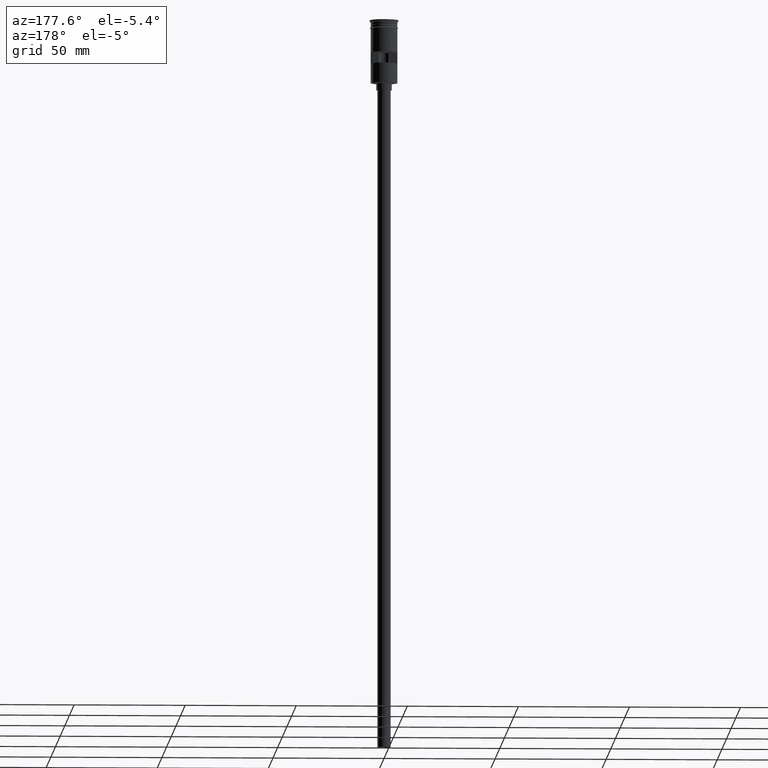
[diagram: clean part render]
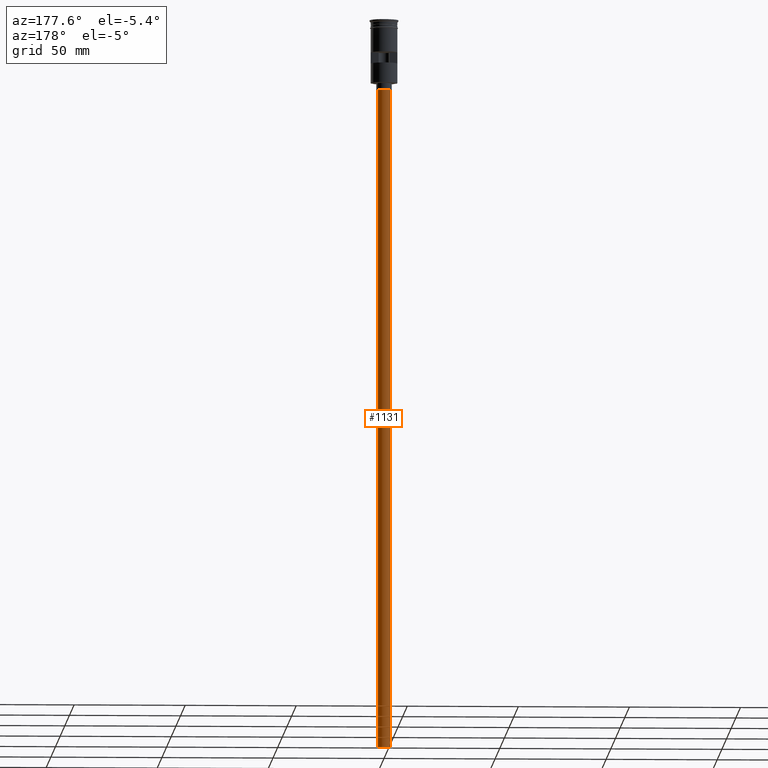
[diagram: same view with one face highlighted and labeled with its STEP entity id]
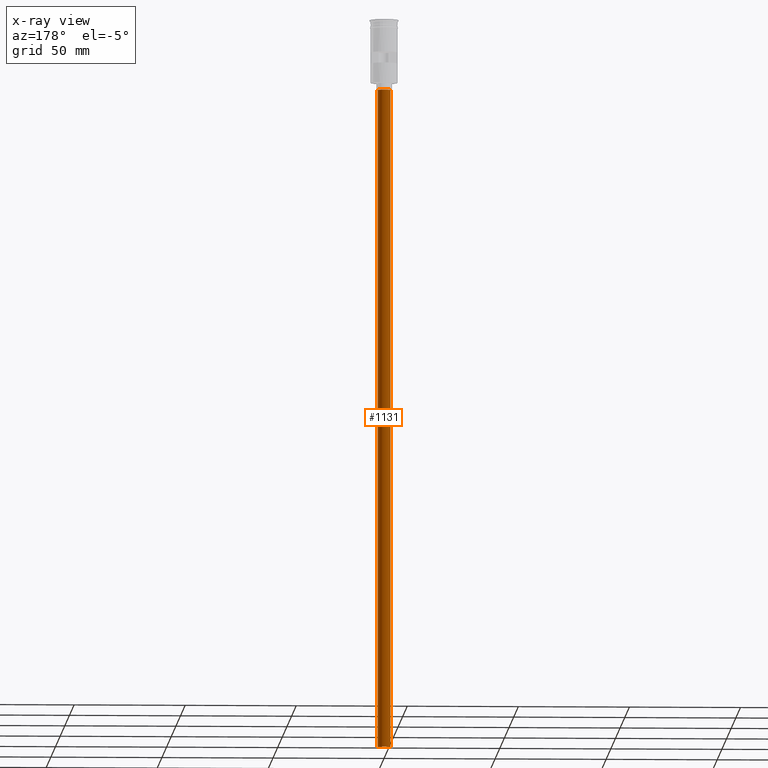
[diagram: x-ray of the same camera — body ghosted, the highlighted face saturated]
A machine part, auxiliary view. The second image highlights one B-rep face of the part: STEP entity #1131.
The next image is the same camera in x-ray: the body ghosted, the highlighted face saturated — about 0% of this face is hidden behind the body in this view.
In plain terms, the highlighted cylindrical surface (edge-blend (fillet) strip) has radius 3 mm, axis along (-0, -0, 1).
Its self-contained STEP definition (entity closure, byte-faithful):
#82 = AXIS2_PLACEMENT_3D ( 'NONE', #338, #1200, #1451 ) ;
#84 = DIRECTION ( 'NONE',  ( 1.000000000000000000, 0.000000000000000000, 0.000000000000000000 ) ) ;
#145 = EDGE_CURVE ( 'NONE', #700, #1403, #277, .T. ) ;
#150 = EDGE_CURVE ( 'NONE', #1403, #1482, #1460, .T. ) ;
#151 = CARTESIAN_POINT ( 'NONE',  ( 0.000000000000000000, 0.000000000000000000, -328.5000000000000000 ) ) ;
#206 = DIRECTION ( 'NONE',  ( -0.000000000000000000, -0.000000000000000000, 1.000000000000000000 ) ) ;
#232 = EDGE_CURVE ( 'NONE', #1259, #1482, #865, .T. ) ;
#277 = LINE ( 'NONE', #1138, #987 ) ;
#338 = CARTESIAN_POINT ( 'NONE',  ( 0.000000000000000000, 0.000000000000000000, -328.5000000000000000 ) ) ;
#363 = ORIENTED_EDGE ( 'NONE', *, *, #232, .F. ) ;
#400 = CYLINDRICAL_SURFACE ( 'NONE', #504, 3.000000000000000444 ) ;
#459 = ORIENTED_EDGE ( 'NONE', *, *, #145, .T. ) ;
#504 = AXIS2_PLACEMENT_3D ( 'NONE', #151, #206, #84 ) ;
#541 = DIRECTION ( 'NONE',  ( -0.000000000000000000, -0.000000000000000000, 1.000000000000000000 ) ) ;
#565 = CARTESIAN_POINT ( 'NONE',  ( -3.000000000000000444, 3.673940397442060361E-16, -328.5000000000000000 ) ) ;
#696 = ORIENTED_EDGE ( 'NONE', *, *, #150, .T. ) ;
#699 = CARTESIAN_POINT ( 'NONE',  ( 3.000000000000000444, 0.000000000000000000, -328.5000000000000000 ) ) ;
#700 = VERTEX_POINT ( 'NONE', #565 ) ;
#720 = EDGE_CURVE ( 'NONE', #700, #1259, #1387, .T. ) ;
#865 = LINE ( 'NONE', #897, #1589 ) ;
#897 = CARTESIAN_POINT ( 'NONE',  ( 3.000000000000000444, 0.000000000000000000, -328.5000000000000000 ) ) ;
#987 = VECTOR ( 'NONE', #1130, 1000.000000000000000 ) ;
#993 = CARTESIAN_POINT ( 'NONE',  ( 0.000000000000000000, 0.000000000000000000, -31.50000000000000000 ) ) ;
#1130 = DIRECTION ( 'NONE',  ( -0.000000000000000000, -0.000000000000000000, 1.000000000000000000 ) ) ;
#1131 = ADVANCED_FACE ( 'NONE', ( #1512 ), #400, .T. ) ;
#1138 = CARTESIAN_POINT ( 'NONE',  ( -3.000000000000000444, 3.673940397442060361E-16, -328.5000000000000000 ) ) ;
#1200 = DIRECTION ( 'NONE',  ( 0.000000000000000000, 0.000000000000000000, -1.000000000000000000 ) ) ;
#1253 = CARTESIAN_POINT ( 'NONE',  ( -3.000000000000000444, 3.673940397442060361E-16, -31.50000000000000000 ) ) ;
#1259 = VERTEX_POINT ( 'NONE', #699 ) ;
#1364 = DIRECTION ( 'NONE',  ( 0.000000000000000000, 0.000000000000000000, -1.000000000000000000 ) ) ;
#1383 = AXIS2_PLACEMENT_3D ( 'NONE', #993, #1364, #1511 ) ;
#1387 = CIRCLE ( 'NONE', #82, 3.000000000000000444 ) ;
#1403 = VERTEX_POINT ( 'NONE', #1253 ) ;
#1409 = EDGE_LOOP ( 'NONE', ( #1419, #459, #696, #363 ) ) ;
#1419 = ORIENTED_EDGE ( 'NONE', *, *, #720, .F. ) ;
#1451 = DIRECTION ( 'NONE',  ( -1.000000000000000000, 0.000000000000000000, 0.000000000000000000 ) ) ;
#1460 = CIRCLE ( 'NONE', #1383, 3.000000000000000444 ) ;
#1482 = VERTEX_POINT ( 'NONE', #1534 ) ;
#1511 = DIRECTION ( 'NONE',  ( -1.000000000000000000, 0.000000000000000000, 0.000000000000000000 ) ) ;
#1512 = FACE_OUTER_BOUND ( 'NONE', #1409, .T. ) ;
#1534 = CARTESIAN_POINT ( 'NONE',  ( 3.000000000000000444, 0.000000000000000000, -31.50000000000000000 ) ) ;
#1589 = VECTOR ( 'NONE', #541, 1000.000000000000000 ) ;